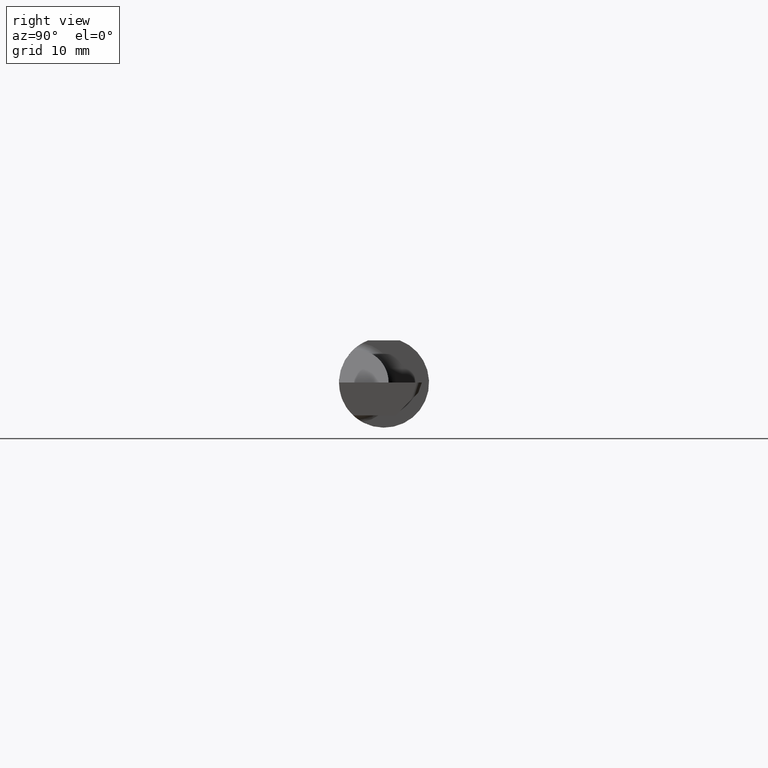
[diagram: clean part render]
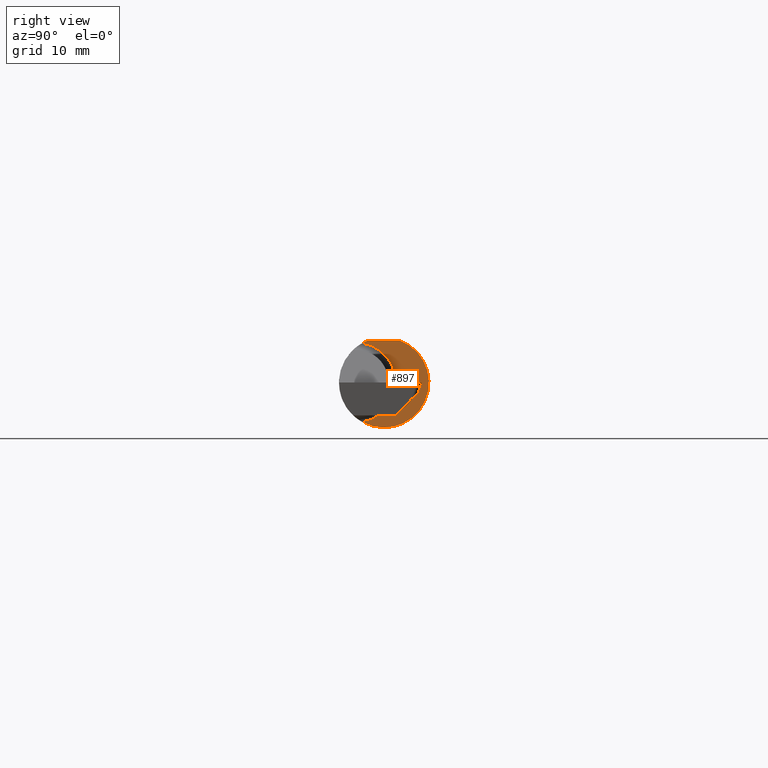
[diagram: same view with one face highlighted and labeled with its STEP entity id]
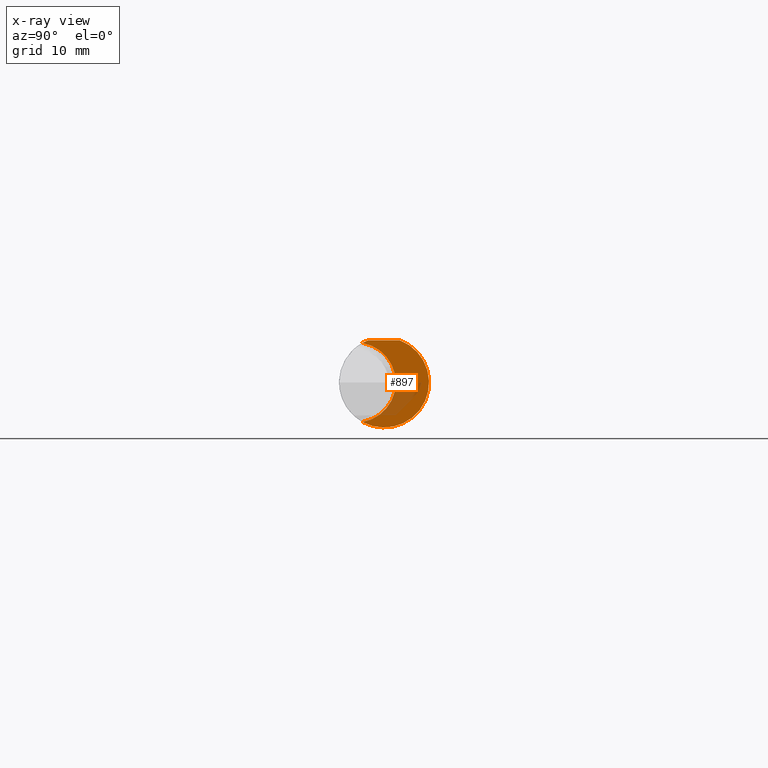
[diagram: x-ray of the same camera — body ghosted, the highlighted face saturated]
A machine part, right view. The second image highlights one B-rep face of the part: STEP entity #897.
The next image is the same camera in x-ray: the body ghosted, the highlighted face saturated — about 22% of this face is hidden behind the body in this view.
In plain terms, the highlighted planar face has unit normal (1, 0, 0).
Its self-contained STEP definition (entity closure, byte-faithful):
#108 = CARTESIAN_POINT ( 'NONE',  ( 1.708566166913449313, 0.05497272050753906208, 0.1460999999999999521 ) ) ;
#123 = EDGE_LOOP ( 'NONE', ( #508, #387, #406, #627 ) ) ;
#175 = VERTEX_POINT ( 'NONE', #108 ) ;
#201 = FACE_OUTER_BOUND ( 'NONE', #123, .T. ) ;
#316 = DIRECTION ( 'NONE',  ( 0.000000000000000000, 0.000000000000000000, -1.000000000000000000 ) ) ;
#335 = EDGE_CURVE ( 'NONE', #462, #907, #915, .T. ) ;
#350 = VECTOR ( 'NONE', #1014, 39.37007874015748143 ) ;
#374 = CARTESIAN_POINT ( 'NONE',  ( 1.708566166913449313, -0.07491136595310907142, -0.1369507110278707640 ) ) ;
#387 = ORIENTED_EDGE ( 'NONE', *, *, #813, .T. ) ;
#406 = ORIENTED_EDGE ( 'NONE', *, *, #335, .T. ) ;
#412 = CIRCLE ( 'NONE', #984, 0.1560999999999999888 ) ;
#437 = DIRECTION ( 'NONE',  ( 1.000000000000000000, 0.000000000000000000, 0.000000000000000000 ) ) ;
#459 = CARTESIAN_POINT ( 'NONE',  ( 1.708566166913449313, -0.09809999999999997888, 0.000000000000000000 ) ) ;
#462 = VERTEX_POINT ( 'NONE', #848 ) ;
#508 = ORIENTED_EDGE ( 'NONE', *, *, #546, .T. ) ;
#509 = DIRECTION ( 'NONE',  ( 0.000000000000000000, 0.000000000000000000, -1.000000000000000000 ) ) ;
#522 = AXIS2_PLACEMENT_3D ( 'NONE', #596, #437, #509 ) ;
#529 = VERTEX_POINT ( 'NONE', #374 ) ;
#546 = EDGE_CURVE ( 'NONE', #529, #175, #412, .T. ) ;
#560 = CARTESIAN_POINT ( 'NONE',  ( 1.708566166913449313, -0.07491136595310907142, 0.1369507110278707640 ) ) ;
#596 = CARTESIAN_POINT ( 'NONE',  ( 1.708566166913449313, 0.1657999999999999752, 0.000000000000000000 ) ) ;
#611 = AXIS2_PLACEMENT_3D ( 'NONE', #927, #625, #316 ) ;
#617 = PLANE ( 'NONE',  #522 ) ;
#625 = DIRECTION ( 'NONE',  ( 1.000000000000000000, 0.000000000000000000, 0.000000000000000000 ) ) ;
#627 = ORIENTED_EDGE ( 'NONE', *, *, #810, .T. ) ;
#664 = CIRCLE ( 'NONE', #802, 0.1388999999999999679 ) ;
#715 = DIRECTION ( 'NONE',  ( 0.000000000000000000, 0.000000000000000000, -1.000000000000000000 ) ) ;
#768 = CARTESIAN_POINT ( 'NONE',  ( 1.708566166913449313, 0.000000000000000000, 0.000000000000000000 ) ) ;
#778 = DIRECTION ( 'NONE',  ( 0.000000000000000000, 0.000000000000000000, 1.000000000000000000 ) ) ;
#802 = AXIS2_PLACEMENT_3D ( 'NONE', #459, #1002, #778 ) ;
#810 = EDGE_CURVE ( 'NONE', #907, #529, #664, .T. ) ;
#813 = EDGE_CURVE ( 'NONE', #175, #462, #846, .T. ) ;
#839 = CARTESIAN_POINT ( 'NONE',  ( 1.708566166913449313, 0.1000000000000000056, 0.1460999999999999521 ) ) ;
#846 = LINE ( 'NONE', #839, #350 ) ;
#848 = CARTESIAN_POINT ( 'NONE',  ( 1.708566166913449313, -0.05497272050753906208, 0.1460999999999999521 ) ) ;
#897 = ADVANCED_FACE ( 'NONE', ( #201 ), #617, .T. ) ;
#907 = VERTEX_POINT ( 'NONE', #560 ) ;
#915 = CIRCLE ( 'NONE', #611, 0.1560999999999999888 ) ;
#927 = CARTESIAN_POINT ( 'NONE',  ( 1.708566166913449313, 0.000000000000000000, 0.000000000000000000 ) ) ;
#984 = AXIS2_PLACEMENT_3D ( 'NONE', #768, #992, #715 ) ;
#992 = DIRECTION ( 'NONE',  ( 1.000000000000000000, 0.000000000000000000, 0.000000000000000000 ) ) ;
#1002 = DIRECTION ( 'NONE',  ( -1.000000000000000000, -0.000000000000000000, -0.000000000000000000 ) ) ;
#1014 = DIRECTION ( 'NONE',  ( 0.000000000000000000, -1.000000000000000000, 0.000000000000000000 ) ) ;